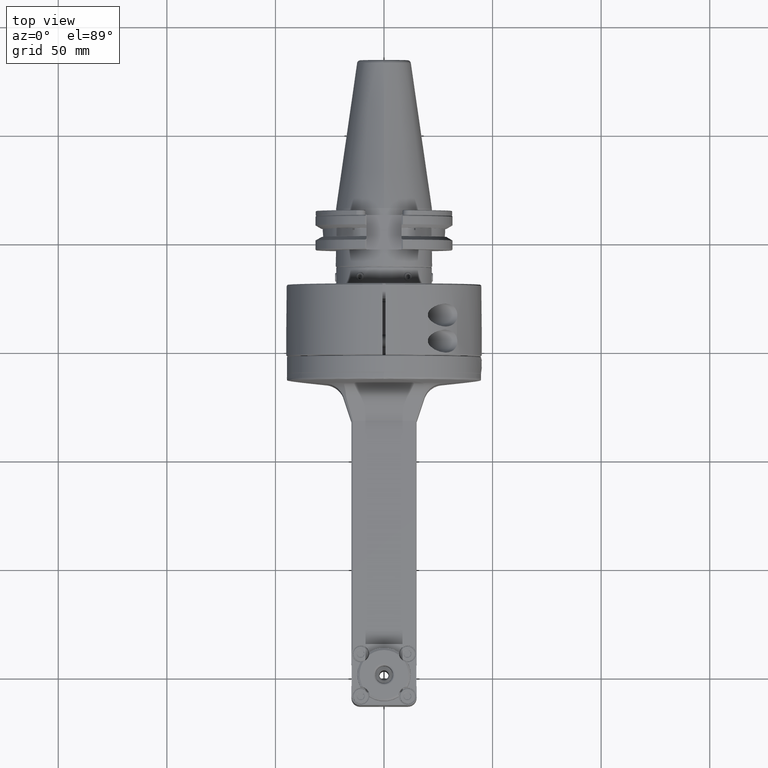
[diagram: clean part render]
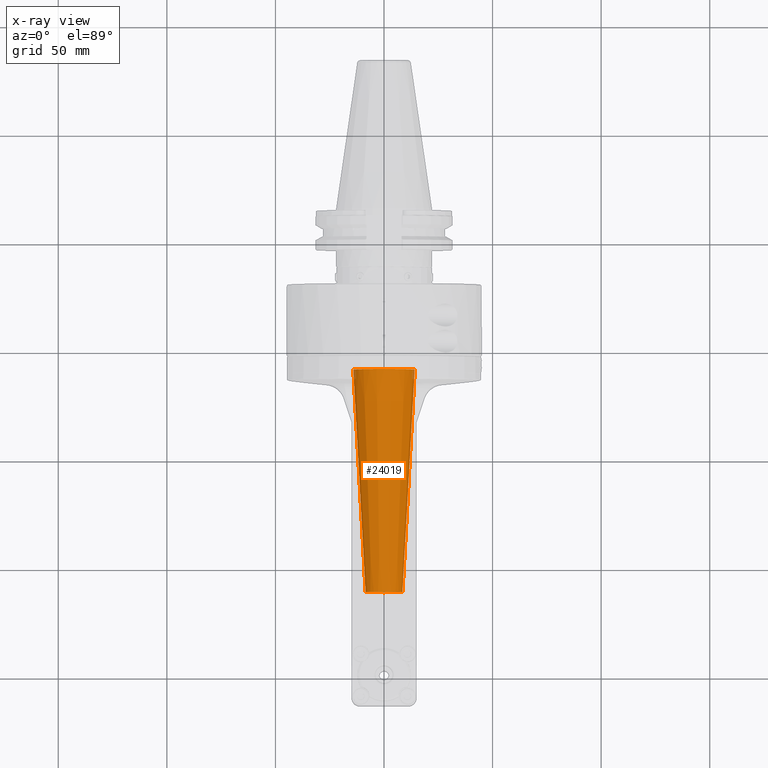
[diagram: x-ray — body ghosted, one internal face saturated and labeled with its STEP entity id]
A machine part, top view, then the same camera in x-ray: the body is ghosted and one INTERNAL B-rep face — a face not visible from any outside direction — is saturated and labeled: STEP entity #24019.
In plain terms, the highlighted conical surface has half-angle 3.195 deg.
Its self-contained STEP definition (entity closure, byte-faithful):
#719=CONICAL_SURFACE('',#26324,11.38893461425,0.0557673585797438);
#2702=LINE('',#46158,#4777);
#4777=VECTOR('',#32742,11.38893461425);
#6573=FACE_OUTER_BOUND('',#8085,.T.);
#8085=EDGE_LOOP('',(#21351,#21352,#21353,#21354,#21355));
#9133=CIRCLE('',#26323,14.25);
#9134=CIRCLE('',#26325,8.527898954938);
#9135=CIRCLE('',#26326,8.527898954938);
#11305=VERTEX_POINT('',#46154);
#11306=VERTEX_POINT('',#46157);
#11307=VERTEX_POINT('',#46159);
#14685=EDGE_CURVE('',#11305,#11305,#9133,.T.);
#14686=EDGE_CURVE('',#11305,#11306,#2702,.T.);
#14687=EDGE_CURVE('',#11306,#11307,#9134,.T.);
#14688=EDGE_CURVE('',#11307,#11306,#9135,.T.);
#21351=ORIENTED_EDGE('',*,*,#14685,.T.);
#21352=ORIENTED_EDGE('',*,*,#14686,.T.);
#21353=ORIENTED_EDGE('',*,*,#14687,.T.);
#21354=ORIENTED_EDGE('',*,*,#14688,.T.);
#21355=ORIENTED_EDGE('',*,*,#14686,.F.);
#24019=ADVANCED_FACE('',(#6573),#719,.T.);
#26323=AXIS2_PLACEMENT_3D('',#46155,#32738,#32739);
#26324=AXIS2_PLACEMENT_3D('',#46156,#32740,#32741);
#26325=AXIS2_PLACEMENT_3D('',#46160,#32743,#32744);
#26326=AXIS2_PLACEMENT_3D('',#46161,#32745,#32746);
#32738=DIRECTION('center_axis',(0.,-1.,0.));
#32739=DIRECTION('ref_axis',(0.,0.,1.));
#32740=DIRECTION('center_axis',(0.,1.,0.));
#32741=DIRECTION('ref_axis',(0.,0.,1.));
#32742=DIRECTION('',(6.82599229659702E-18,-0.998445403820465,0.0557384570093969));
#32743=DIRECTION('center_axis',(0.,1.,0.));
#32744=DIRECTION('ref_axis',(0.,0.,-1.));
#32745=DIRECTION('center_axis',(0.,1.,0.));
#32746=DIRECTION('ref_axis',(0.,0.,-1.));
#46154=CARTESIAN_POINT('',(0.,141.,-14.25));
#46155=CARTESIAN_POINT('Origin',(0.,141.,0.));
#46156=CARTESIAN_POINT('Origin',(0.,89.74961135096,0.));
#46157=CARTESIAN_POINT('',(0.,38.49975519279,-8.527898954938));
#46158=CARTESIAN_POINT('',(-1.39474223210398E-15,89.74961135096,-11.38893461425));
#46159=CARTESIAN_POINT('',(-8.52789895493442,38.4997551927938,-1.29629117129887E-14));
#46160=CARTESIAN_POINT('Origin',(0.,38.49975519279,0.));
#46161=CARTESIAN_POINT('Origin',(0.,38.49975519279,0.));